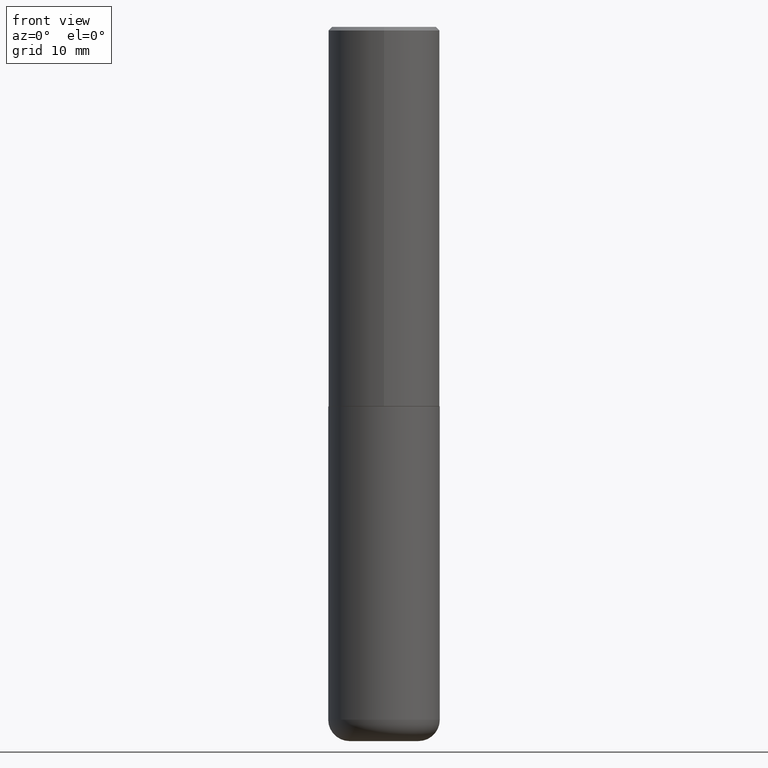
[diagram: clean part render]
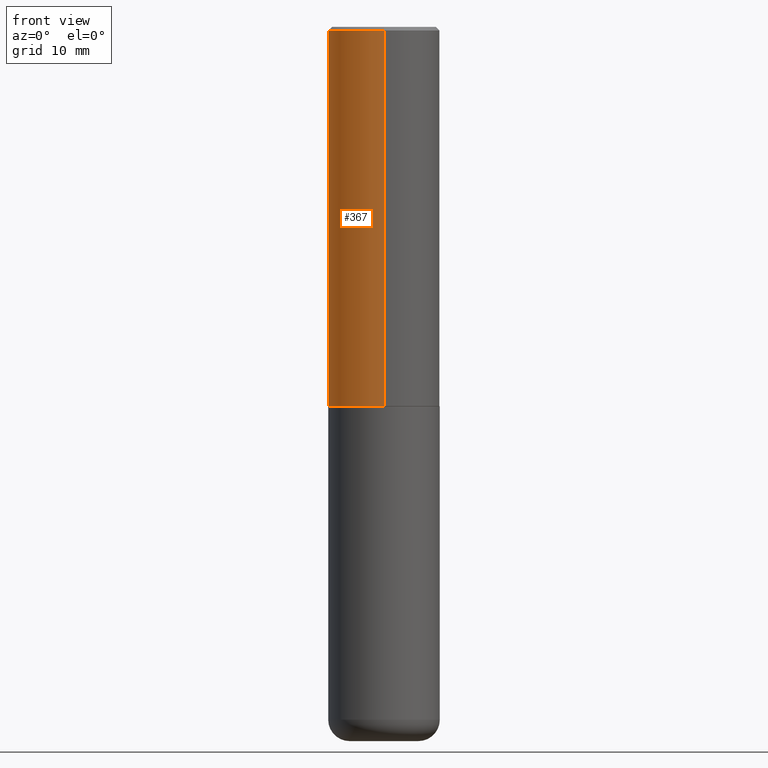
[diagram: same view with one face highlighted and labeled with its STEP entity id]
A machine part, front view. The second image highlights one B-rep face of the part: STEP entity #367.
In plain terms, the highlighted cylindrical surface (partial cylindrical patch) has radius 7.9375 mm, axis along (-0, 0, 1).
Its self-contained STEP definition (entity closure, byte-faithful):
#11 = DIRECTION ( 'NONE',  ( -2.444852431726452894E-29, 3.492364022149836358E-15, 1.000000000000000000 ) ) ;
#14 = CIRCLE ( 'NONE', #112, 0.3125000000000000000 ) ;
#21 = AXIS2_PLACEMENT_3D ( 'NONE', #295, #11, #256 ) ;
#24 = EDGE_CURVE ( 'NONE', #237, #273, #184, .T. ) ;
#25 = ORIENTED_EDGE ( 'NONE', *, *, #161, .F. ) ;
#30 = DIRECTION ( 'NONE',  ( -6.982962677686265133E-15, -1.000000000000000000, 3.492364022149836358E-15 ) ) ;
#40 = ORIENTED_EDGE ( 'NONE', *, *, #390, .T. ) ;
#45 = EDGE_CURVE ( 'NONE', #237, #50, #95, .T. ) ;
#50 = VERTEX_POINT ( 'NONE', #403 ) ;
#59 = CARTESIAN_POINT ( 'NONE',  ( 4.889704863452922148E-31, -6.984728044299695791E-17, -0.02000000000000006981 ) ) ;
#80 = DIRECTION ( 'NONE',  ( -2.444852431726452894E-29, 3.492364022149836358E-15, 1.000000000000000000 ) ) ;
#95 = CIRCLE ( 'NONE', #21, 0.3125000000000002776 ) ;
#99 = DIRECTION ( 'NONE',  ( -2.444852431726452614E-29, 3.492364022149836358E-15, 1.000000000000000000 ) ) ;
#102 = VECTOR ( 'NONE', #123, 39.37007874015748143 ) ;
#112 = AXIS2_PLACEMENT_3D ( 'NONE', #59, #80, #379 ) ;
#123 = DIRECTION ( 'NONE',  ( -2.444852431726452614E-29, 3.492364022149836358E-15, 1.000000000000000000 ) ) ;
#138 = CARTESIAN_POINT ( 'NONE',  ( 2.182175836776958741E-15, 0.3124999999999999445, -0.02000000000000116268 ) ) ;
#147 = EDGE_LOOP ( 'NONE', ( #175, #415, #40, #25 ) ) ;
#161 = EDGE_CURVE ( 'NONE', #273, #271, #14, .T. ) ;
#166 = AXIS2_PLACEMENT_3D ( 'NONE', #282, #320, #30 ) ;
#175 = ORIENTED_EDGE ( 'NONE', *, *, #24, .F. ) ;
#184 = LINE ( 'NONE', #313, #102 ) ;
#223 = CARTESIAN_POINT ( 'NONE',  ( 2.220446049250340297E-15, 0.3124999999999928391, -2.124000000000000554 ) ) ;
#237 = VERTEX_POINT ( 'NONE', #223 ) ;
#245 = CARTESIAN_POINT ( 'NONE',  ( -2.182175836776959136E-15, -0.3125000000000001665, 1.091363756921824478E-15 ) ) ;
#256 = DIRECTION ( 'NONE',  ( -6.982962677686265922E-15, -1.000000000000000000, 3.496765431890253764E-15 ) ) ;
#271 = VERTEX_POINT ( 'NONE', #333 ) ;
#273 = VERTEX_POINT ( 'NONE', #138 ) ;
#279 = LINE ( 'NONE', #245, #301 ) ;
#282 = CARTESIAN_POINT ( 'NONE',  ( 0.000000000000000000, 0.000000000000000000, 0.000000000000000000 ) ) ;
#295 = CARTESIAN_POINT ( 'NONE',  ( 5.192866564986985411E-29, -7.417781183046251262E-15, -2.123999999999999666 ) ) ;
#301 = VECTOR ( 'NONE', #99, 39.37007874015748143 ) ;
#313 = CARTESIAN_POINT ( 'NONE',  ( 2.220446049250313475E-15, 0.3125000000000001665, -1.091363756921824478E-15 ) ) ;
#320 = DIRECTION ( 'NONE',  ( -2.444852431726452894E-29, 3.492364022149836358E-15, 1.000000000000000000 ) ) ;
#324 = CYLINDRICAL_SURFACE ( 'NONE', #166, 0.3125000000000001665 ) ;
#333 = CARTESIAN_POINT ( 'NONE',  ( -2.143905624303602824E-15, -0.3125000000000000555, -0.01999999999999897693 ) ) ;
#362 = FACE_OUTER_BOUND ( 'NONE', #147, .T. ) ;
#367 = ADVANCED_FACE ( 'NONE', ( #362 ), #324, .T. ) ;
#379 = DIRECTION ( 'NONE',  ( -6.982962677686265133E-15, -1.000000000000000000, 3.496765431890256920E-15 ) ) ;
#390 = EDGE_CURVE ( 'NONE', #50, #271, #279, .T. ) ;
#403 = CARTESIAN_POINT ( 'NONE',  ( -2.182175836776908254E-15, -0.3125000000000077161, -2.123999999999998334 ) ) ;
#415 = ORIENTED_EDGE ( 'NONE', *, *, #45, .T. ) ;